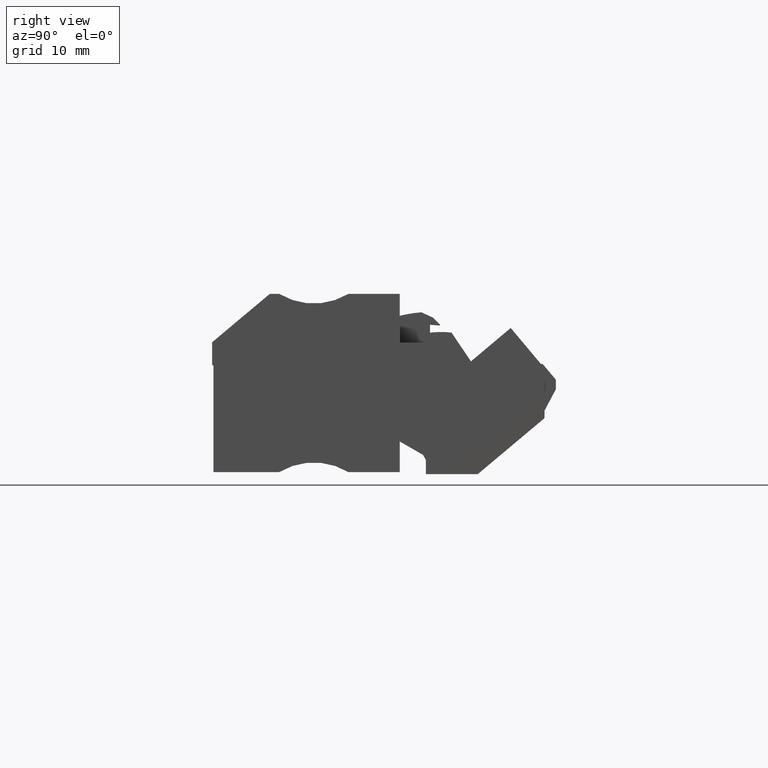
[diagram: clean part render]
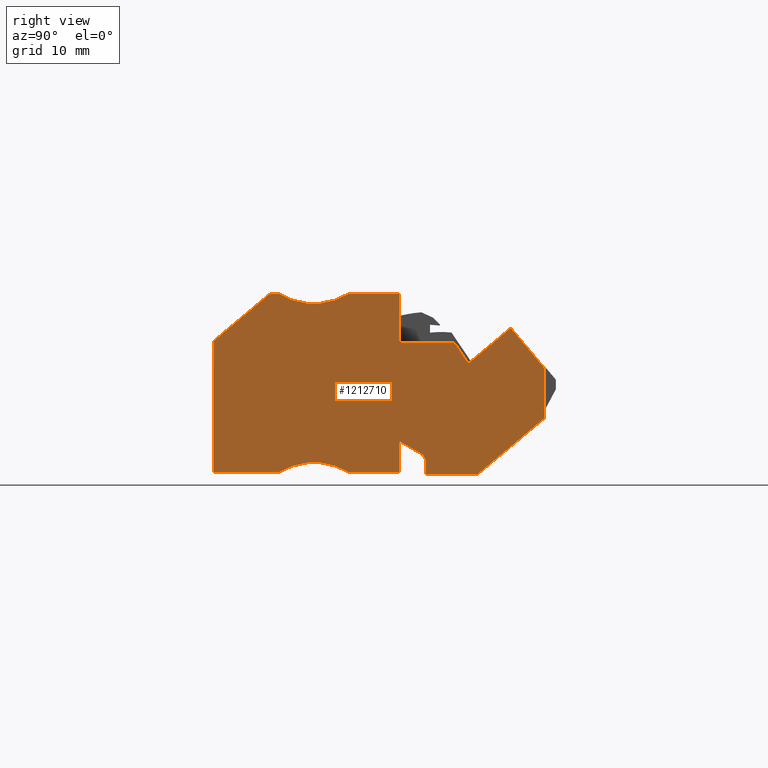
[diagram: same view with one face highlighted and labeled with its STEP entity id]
A machine part, right view. The second image highlights one B-rep face of the part: STEP entity #1212710.
In plain terms, the highlighted planar face has unit normal (1, 0, -0).
Its self-contained STEP definition (entity closure, byte-faithful):
#1205980=CARTESIAN_POINT('',(448.253158741508,690.234347655512,
158.169999974835));
#1205990=VERTEX_POINT('',#1205980);
#1206020=CARTESIAN_POINT('',(448.253158736792,686.318603633261,
158.169999976654));
#1206030=DIRECTION('',(-1.20456361551975E-9,-1.,4.64504820525951E-10));
#1206040=VECTOR('',#1206030,1.);
#1206050=LINE('',#1206020,#1206040);
#1206060=CARTESIAN_POINT('',(448.253158750302,697.53434765544,
158.169999971444));
#1206070=VERTEX_POINT('',#1206060);
#1206080=EDGE_CURVE('',#1206070,#1205990,#1206050,.T.);
#1206390=CARTESIAN_POINT('',(456.411547098485,690.234347645684,
158.169999968225));
#1206400=VERTEX_POINT('',#1206390);
#1206430=CARTESIAN_POINT('',(412.568902757138,690.234347698496,
158.16999997594));
#1206440=DIRECTION('',(-1.,1.20456478125426E-9,1.75956911828149E-10));
#1206450=VECTOR('',#1206440,1.);
#1206460=LINE('',#1206430,#1206450);
#1206470=EDGE_CURVE('',#1206400,#1205990,#1206460,.T.);
#1206640=CARTESIAN_POINT('',(471.149558081739,668.384347749021,
158.169999974905));
#1206650=DIRECTION('',(0.559192902426276,-0.829037573259547,
2.53463132922706E-10));
#1206660=VECTOR('',#1206650,1.);
#1206670=LINE('',#1206640,#1206660);
#1206680=CARTESIAN_POINT('',(458.497798364781,687.14135294427,
158.169999969171));
#1206690=VERTEX_POINT('',#1206680);
#1206700=EDGE_CURVE('',#1206400,#1206690,#1206670,.T.);
#1207060=CARTESIAN_POINT('',(469.853158724197,678.981362878492,
158.169999970636));
#1207070=VERTEX_POINT('',#1207060);
#1207100=CARTESIAN_POINT('',(469.853158759053,707.918603602237,
158.169999958355));
#1207110=DIRECTION('',(1.20455911911653E-9,1.,-4.24416471219152E-10));
#1207120=VECTOR('',#1207110,1.);
#1207130=LINE('',#1207100,#1207120);
#1207140=CARTESIAN_POINT('',(469.853158733191,686.448039243771,
158.169999967467));
#1207150=VERTEX_POINT('',#1207140);
#1207160=EDGE_CURVE('',#1207070,#1207150,#1207130,.T.);
#1207440=CARTESIAN_POINT('',(459.905573299473,670.634347641177,
158.169999975929));
#1207450=VERTEX_POINT('',#1207440);
#1207480=CARTESIAN_POINT('',(447.053267514317,659.849982627663,
158.169999982768));
#1207490=DIRECTION('',(-0.766044444016711,-0.642787608616663,
4.07600244682758E-10));
#1207500=VECTOR('',#1207490,1.);
#1207510=LINE('',#1207480,#1207500);
#1207520=EDGE_CURVE('',#1207070,#1207450,#1207510,.T.);
#1207750=CARTESIAN_POINT('',(420.453158774954,690.486358086405,
158.169999974445));
#1207760=VERTEX_POINT('',#1207750);
#1207790=CARTESIAN_POINT('',(420.45315876766,686.450091441072,
158.169999976159));
#1207800=DIRECTION('',(-1.80696546614432E-9,-1.,4.24416371870361E-10));
#1207810=VECTOR('',#1207800,1.);
#1207820=LINE('',#1207790,#1207810);
#1207830=CARTESIAN_POINT('',(420.453158739624,670.9343476887,
158.169999982744));
#1207840=VERTEX_POINT('',#1207830);
#1207850=EDGE_CURVE('',#1207760,#1207840,#1207820,.T.);
#1208570=CARTESIAN_POINT('',(435.668902499002,670.934347670372,
158.169999985412));
#1208580=DIRECTION('',(1.,-1.20456572494381E-9,-1.2810032886981E-10));
#1208590=VECTOR('',#1208580,1.);
#1208600=LINE('',#1208570,#1208590);
#1208610=CARTESIAN_POINT('',(430.260883730957,670.934347676886,
158.169999986105));
#1208620=VERTEX_POINT('',#1208610);
#1208630=EDGE_CURVE('',#1207840,#1208620,#1208600,.T.);
#1209040=CARTESIAN_POINT('',(435.425728090524,662.371381909031,
158.169999989421));
#1209050=DIRECTION('',(1.28100595517667E-10,4.64504649617954E-10,1.));
#1209060=DIRECTION('',(0.707106782058739,0.707106780314356,
-4.19035115678159E-10));
#1209070=AXIS2_PLACEMENT_3D('',#1209040,#1209050,#1209060);
#1209080=CIRCLE('',#1209070,10.);
#1209090=CARTESIAN_POINT('',(440.590572470693,670.934347664459,
158.169999984782));
#1209100=VERTEX_POINT('',#1209090);
#1209110=EDGE_CURVE('',#1209100,#1208620,#1209080,.T.);
#1209310=CARTESIAN_POINT('',(435.968902496984,670.93434767001,
158.169999985374));
#1209320=DIRECTION('',(1.,-1.20456572494381E-9,-1.28100291599098E-10));
#1209330=VECTOR('',#1209320,1.);
#1209340=LINE('',#1209310,#1209330);
#1209350=CARTESIAN_POINT('',(448.25315871826,670.934347655213,
158.1699999838));
#1209360=VERTEX_POINT('',#1209350);
#1209370=EDGE_CURVE('',#1209100,#1209360,#1209340,.T.);
#1209650=CARTESIAN_POINT('',(448.253158723769,675.507552734171,
158.169999975911));
#1209660=VERTEX_POINT('',#1209650);
#1209710=EDGE_CURVE('',#1209660,#1209360,#1206050,.T.);
#1209890=CARTESIAN_POINT('',(443.998522785064,677.963967945519,
158.169999975617));
#1209900=DIRECTION('',(0.866025403182159,-0.50000000104318,
5.9824925418767E-11));
#1209910=VECTOR('',#1209900,1.);
#1209920=LINE('',#1209890,#1209910);
#1209930=CARTESIAN_POINT('',(451.720146015009,673.505886682728,
158.169999976151));
#1209940=VERTEX_POINT('',#1209930);
#1209950=EDGE_CURVE('',#1209660,#1209940,#1209920,.T.);
#1210200=CARTESIAN_POINT('',(66.4180495057718,1340.86869595602,
158.169999760708));
#1210210=DIRECTION('',(-0.499999998956815,0.866025404386722,
-2.79576749618894E-10));
#1210220=VECTOR('',#1210210,1.);
#1210230=LINE('',#1210200,#1210220);
#1210240=CARTESIAN_POINT('',(452.153158716153,672.755886681938,
158.169999976393));
#1210250=VERTEX_POINT('',#1210240);
#1210260=EDGE_CURVE('',#1210250,#1209940,#1210230,.T.);
#1210510=CARTESIAN_POINT('',(452.153158732249,686.118603873059,
158.169999970721));
#1210520=DIRECTION('',(1.20456272734136E-9,1.,-4.24416190185318E-10));
#1210530=VECTOR('',#1210520,1.);
#1210540=LINE('',#1210510,#1210530);
#1210550=CARTESIAN_POINT('',(452.153158713597,670.634347650515,
158.169999977293));
#1210560=VERTEX_POINT('',#1210550);
#1210570=EDGE_CURVE('',#1210560,#1210250,#1210540,.T.);
#1210820=CARTESIAN_POINT('',(436.268902498624,670.634347669649,
158.169999980088));
#1210830=DIRECTION('',(1.,-1.20456572494383E-9,-1.75956908679912E-10));
#1210840=VECTOR('',#1210830,1.);
#1210850=LINE('',#1210820,#1210840);
#1210860=EDGE_CURVE('',#1210560,#1207450,#1210850,.T.);
#1211090=CARTESIAN_POINT('',(428.852625743678,697.534347692813,
158.169999969976));
#1211100=VERTEX_POINT('',#1211090);
#1211150=CARTESIAN_POINT('',(418.258461671487,688.644788570796,
158.169999975613));
#1211160=DIRECTION('',(0.766044444670996,0.642787607836916,
-4.07600435471174E-10));
#1211170=VECTOR('',#1211160,1.);
#1211180=LINE('',#1211150,#1211170);
#1211190=EDGE_CURVE('',#1207760,#1211100,#1211180,.T.);
#1211550=CARTESIAN_POINT('',(430.260883738994,697.534347690998,
158.169999973749));
#1211560=VERTEX_POINT('',#1211550);
#1211590=CARTESIAN_POINT('',(459.468902540023,697.534347655934,
158.169999964589));
#1211600=DIRECTION('',(1.,-1.20456350449778E-9,-1.7595690306274E-10));
#1211610=VECTOR('',#1211600,1.);
#1211620=LINE('',#1211590,#1211610);
#1211630=EDGE_CURVE('',#1211100,#1211560,#1211620,.T.);
#1211870=CARTESIAN_POINT('',(440.590572500705,697.53434766467,
158.169999972426));
#1211880=VERTEX_POINT('',#1211870);
#1211910=CARTESIAN_POINT('',(435.425728141679,706.097313432846,
158.16999996911));
#1211920=DIRECTION('',(1.28100595517667E-10,4.64504649617954E-10,1.));
#1211930=DIRECTION('',(0.707106782058739,0.707106780314356,
-4.19035115678159E-10));
#1211940=AXIS2_PLACEMENT_3D('',#1211910,#1211920,#1211930);
#1211950=CIRCLE('',#1211940,10.);
#1211960=EDGE_CURVE('',#1211560,#1211880,#1211950,.T.);
#1212140=CARTESIAN_POINT('',(409.368902531576,697.534347702279,
158.169999976445));
#1212150=DIRECTION('',(-1.,1.20456378205352E-9,1.28100328869811E-10));
#1212160=VECTOR('',#1212150,1.);
#1212170=LINE('',#1212140,#1212160);
#1212180=EDGE_CURVE('',#1206070,#1211880,#1212170,.T.);
#1212320=CARTESIAN_POINT('',(434.418902620805,672.48434755084,
158.169999979628));
#1212330=DIRECTION('',(1.75956914421888E-10,4.2441642785003E-10,1.));
#1212340=DIRECTION('',(0.707106780334796,-0.707106782038299,
1.75687407306717E-10));
#1212350=AXIS2_PLACEMENT_3D('',#1212320,#1212330,#1212340);
#1212360=PLANE('',#1212350);
#1212370=ORIENTED_EDGE('',*,*,#1209710,.F.);
#1212380=ORIENTED_EDGE('',*,*,#1209370,.T.);
#1212390=ORIENTED_EDGE('',*,*,#1209110,.F.);
#1212400=ORIENTED_EDGE('',*,*,#1208630,.T.);
#1212410=ORIENTED_EDGE('',*,*,#1207850,.T.);
#1212420=ORIENTED_EDGE('',*,*,#1211190,.F.);
#1212430=ORIENTED_EDGE('',*,*,#1211630,.F.);
#1212440=ORIENTED_EDGE('',*,*,#1211960,.F.);
#1212450=ORIENTED_EDGE('',*,*,#1212180,.T.);
#1212460=ORIENTED_EDGE('',*,*,#1206080,.F.);
#1212470=ORIENTED_EDGE('',*,*,#1206470,.T.);
#1212480=ORIENTED_EDGE('',*,*,#1206700,.F.);
#1212490=CARTESIAN_POINT('',(434.418902607984,666.936760454606,
158.169999981983));
#1212500=DIRECTION('',(0.766044443506207,0.642787609225058,
-4.07600241177514E-10));
#1212510=VECTOR('',#1212500,1.);
#1212520=LINE('',#1212490,#1212510);
#1212530=CARTESIAN_POINT('',(464.820007019397,692.446315888093,
158.169999965807));
#1212540=VERTEX_POINT('',#1212530);
#1212550=EDGE_CURVE('',#1206690,#1212540,#1212520,.T.);
#1212560=ORIENTED_EDGE('',*,*,#1212550,.F.);
#1212570=CARTESIAN_POINT('',(460.057092051682,698.122536919032,
158.169999964236));
#1212580=DIRECTION('',(-0.642787609225153,0.766044443506127,
-2.12018918733443E-10));
#1212590=VECTOR('',#1212580,1.);
#1212600=LINE('',#1212570,#1212590);
#1212610=EDGE_CURVE('',#1207150,#1212540,#1212600,.T.);
#1212620=ORIENTED_EDGE('',*,*,#1212610,.T.);
#1212630=ORIENTED_EDGE('',*,*,#1207160,.T.);
#1212640=ORIENTED_EDGE('',*,*,#1207520,.F.);
#1212650=ORIENTED_EDGE('',*,*,#1210860,.T.);
#1212660=ORIENTED_EDGE('',*,*,#1210570,.F.);
#1212670=ORIENTED_EDGE('',*,*,#1210260,.F.);
#1212680=ORIENTED_EDGE('',*,*,#1209950,.T.);
#1212690=EDGE_LOOP('',(#1212680,#1212670,#1212660,#1212650,#1212640,
#1212630,#1212620,#1212560,#1212480,#1212470,#1212460,#1212450,#1212440,
#1212430,#1212420,#1212410,#1212400,#1212390,#1212380,#1212370));
#1212700=FACE_OUTER_BOUND('',#1212690,.T.);
#1212710=ADVANCED_FACE('',(#1212700),#1212360,.T.);